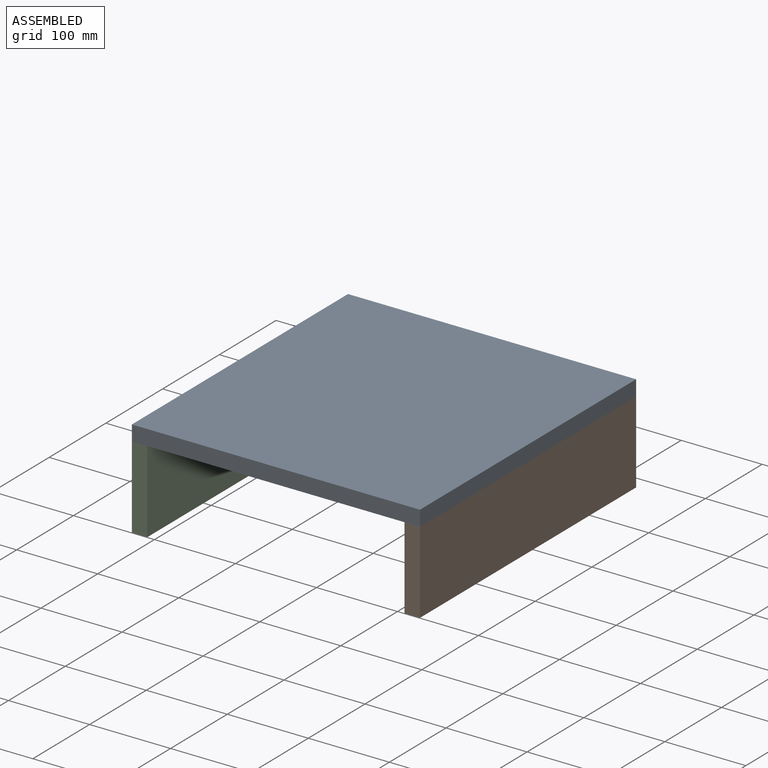
[diagram: assembled view]
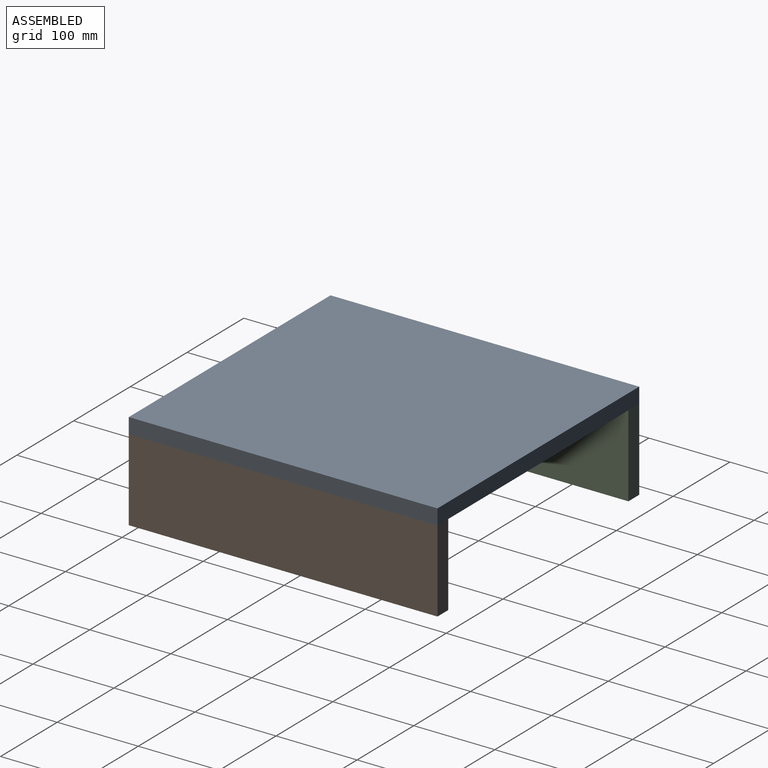
[diagram: assembled view, second angle]
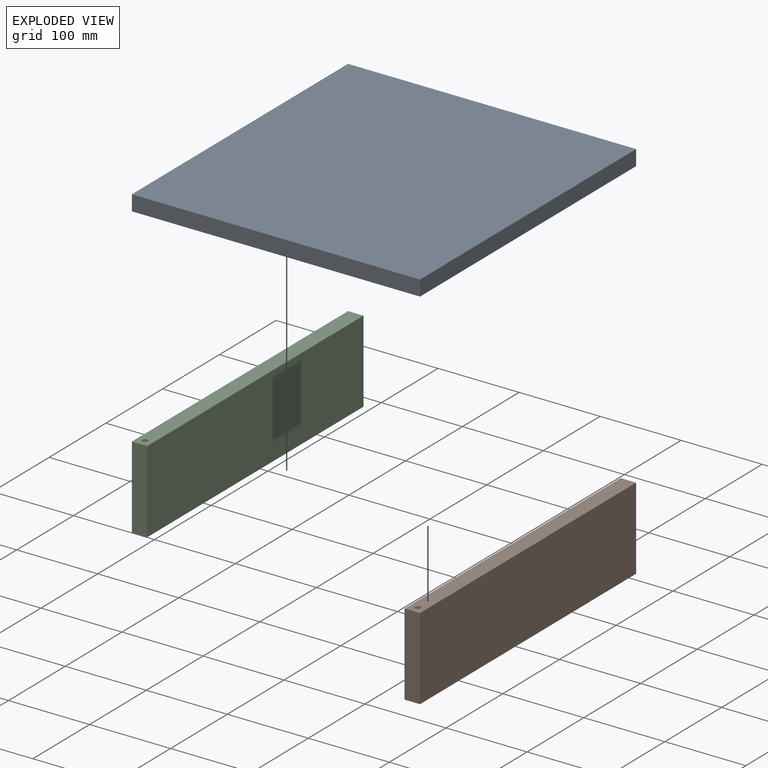
[diagram: exploded view]
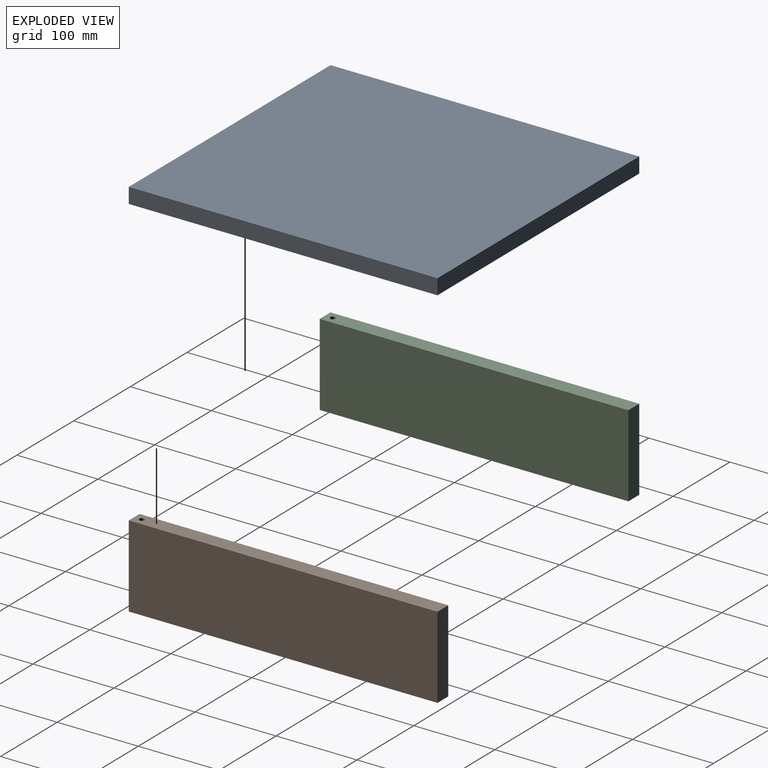
[diagram: exploded view, second angle]
ASSEMBLY  parts=3 mates=2
PART A: 10 faces, bbox 355.6x381x19.1 mm
  f0: plane 381x355.6mm, normal (0,0,1), area 135483.6mm2, adj f1,f3,f4,f5
  f1: plane 381x19.05mm, normal (-1,0,0), area 7258mm2, adj f0,f2,f4,f5
  f2: plane 381x355.6mm, normal (0,0,-1), area 135420.3mm2, adj f1,f3,f4,f5,f7,f9
  f3: plane 381x19.05mm, normal (1,0,0), area 7258mm2, adj f0,f2,f4,f5
  f4: plane 355.6x19.05mm, normal (0,-1,0), area 6774.2mm2, adj f0,f1,f2,f3
  f5: plane 355.6x19.05mm, normal (0,1,0), area 6774.2mm2, adj f0,f1,f2,f3
  f6: cone r=0mm half-angle=59deg, axis (0,0,-1), area 36.9mm2, adj f7
  f7: cylinder r=3.17mm len=12.7mm, axis (0,0,-1), area 253.4mm2, adj f2,f6
  f8: cone r=0mm half-angle=59deg, axis (0,0,-1), area 36.9mm2, adj f9
  f9: cylinder r=3.17mm len=12.7mm, axis (0,0,-1), area 253.4mm2, adj f2,f8
PART B: 8 faces, bbox 19.1x381x101.6 mm
  f0: plane 381x19.05mm, normal (0,0,1), area 7226.4mm2, adj f1,f3,f4,f5,f7
  f1: plane 381x101.6mm, normal (-1,0,0), area 38709.6mm2, adj f0,f2,f4,f5
  f2: plane 381x19.05mm, normal (0,0,-1), area 7258.1mm2, adj f1,f3,f4,f5
  f3: plane 381x101.6mm, normal (1,0,0), area 38709.6mm2, adj f0,f2,f4,f5
  f4: plane 101.6x19.05mm, normal (0,-1,0), area 1935.5mm2, adj f0,f1,f2,f3
  f5: plane 101.6x19.05mm, normal (0,1,0), area 1935.5mm2, adj f0,f1,f2,f3
  f6: cone r=0mm half-angle=59deg, axis (0,0,1), area 36.9mm2, adj f7
  f7: cylinder r=3.17mm len=12.7mm, axis (0,0,1), area 253.4mm2, adj f0,f6
PART C: same geometry as B
PLACE A t=(-47.25,98.29,-93.56)mm
PLACE B t=(289.49,98.29,-156.87)mm
PLACE C t=(-47.06,98.29,-156.87)mm
MATE fastened C.f6 <-> A.f8  axis (0,0,1) through (-90.35,-273.18,-100.99)mm
MATE fastened B.f6 <-> A.f6  axis (0,0,1) through (246.2,-273.18,-100.99)mm
